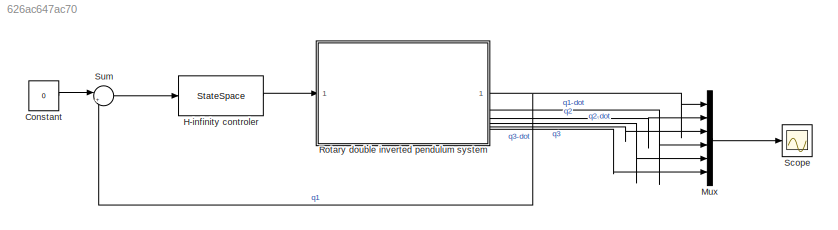
MODEL slx_626ac647ac70
KIND model
CONFIG AbsTol = auto
CONFIG EnableMultiTasking = on
CONFIG FixedStep = 0.002
CONFIG MaxStep = auto
CONFIG MinStep = auto
CONFIG RelTol = 1e-3
CONFIG SampleTimeConstraint = Unconstrained
CONFIG SolverName = VariableStepAuto
CONFIG StartTime = 0.0
CONFIG StopTime = 30
BLOCK [Constant] Constant
  Value = 0
BLOCK [StateSpace] H-infinity controler
  A = A_c
  B = B_c
  C = C_c
  D = D_c
  InitialCondition = 0
  NameLocation = top
BLOCK [Mux] Mux
  DisplayOption = bar
  Inputs = 6
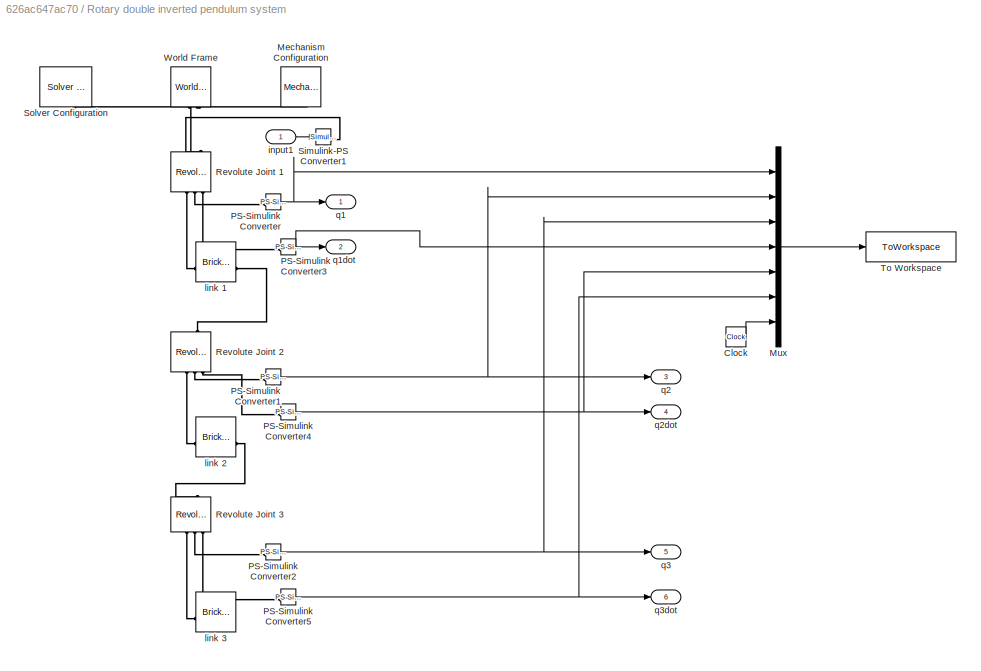
BLOCK [SubSystem] Rotary double inverted pendulum system
BLOCK [Clock] Rotary double inverted pendulum system/Clock
BLOCK [Reference] Rotary double inverted pendulum system/Mechanism Configuration  REF=sm_lib/Utilities/Mechanism
Configuration
  NameLocation = right
  SourceBlock = sm_lib/Utilities/Mechanism\nConfiguration
  SourceType = Mechanism\nConfiguration
BLOCK [Mux] Rotary double inverted pendulum system/Mux
  DisplayOption = bar
  Inputs = 7
BLOCK [Reference] Rotary double inverted pendulum system/PS-Simulink Converter  REF=nesl_utility/PS-Simulink
Converter
  SourceBlock = nesl_utility/PS-Simulink\nConverter
  SourceType = PS-Simulink\nConverter
BLOCK [Reference] Rotary double inverted pendulum system/PS-Simulink Converter1  REF=nesl_utility/PS-Simulink
Converter
  SourceBlock = nesl_utility/PS-Simulink\nConverter
  SourceType = PS-Simulink\nConverter
BLOCK [Reference] Rotary double inverted pendulum system/PS-Simulink Converter2  REF=nesl_utility/PS-Simulink
Converter
  SourceBlock = nesl_utility/PS-Simulink\nConverter
  SourceType = PS-Simulink\nConverter
BLOCK [Reference] Rotary double inverted pendulum system/PS-Simulink Converter3  REF=nesl_utility/PS-Simulink
Converter
  SourceBlock = nesl_utility/PS-Simulink\nConverter
  SourceType = PS-Simulink\nConverter
BLOCK [Reference] Rotary double inverted pendulum system/PS-Simulink Converter4  REF=nesl_utility/PS-Simulink
Converter
  SourceBlock = nesl_utility/PS-Simulink\nConverter
  SourceType = PS-Simulink\nConverter
BLOCK [Reference] Rotary double inverted pendulum system/PS-Simulink Converter5  REF=nesl_utility/PS-Simulink
Converter
  SourceBlock = nesl_utility/PS-Simulink\nConverter
  SourceType = PS-Simulink\nConverter
BLOCK [Reference] Rotary double inverted pendulum system/Revolute Joint 1  REF=sm_lib/Joints/Revolute Joint
  NameLocation = right
  SourceBlock = sm_lib/Joints/Revolute Joint
  SourceType = Revolute Joint
BLOCK [Reference] Rotary double inverted pendulum system/Revolute Joint 2  REF=sm_lib/Joints/Revolute Joint
  NameLocation = right
  SourceBlock = sm_lib/Joints/Revolute Joint
  SourceType = Revolute Joint
BLOCK [Reference] Rotary double inverted pendulum system/Revolute Joint 3  REF=sm_lib/Joints/Revolute Joint
  NameLocation = right
  SourceBlock = sm_lib/Joints/Revolute Joint
  SourceType = Revolute Joint
BLOCK [Reference] Rotary double inverted pendulum system/Simulink-PS Converter1  REF=nesl_utility/Simulink-PS
Converter
  SourceBlock = nesl_utility/Simulink-PS\nConverter
  SourceType = Simulink-PS\nConverter
BLOCK [Reference] Rotary double inverted pendulum system/Solver Configuration  REF=nesl_utility/Solver
Configuration
  NameLocation = right
  SourceBlock = nesl_utility/Solver\nConfiguration
  SourceType = Solver\nConfiguration
BLOCK [ToWorkspace] Rotary double inverted pendulum system/To Workspace
  FixptAsFi = on
  MaxDataPoints = inf
  SampleTime = -1
  VariableName = simout
BLOCK [Reference] Rotary double inverted pendulum system/World Frame  REF=sm_lib/Frames and
Transforms/World Frame
  NameLocation = right
  SourceBlock = sm_lib/Frames and\nTransforms/World Frame
  SourceType = World Frame
BLOCK [Inport] Rotary double inverted pendulum system/input1
BLOCK [Reference] Rotary double inverted pendulum system/link 1  REF=sm_lib/Body Elements/Brick Solid
  NameLocation = top
  SourceBlock = sm_lib/Body Elements/Brick Solid
  SourceType = Brick Solid
BLOCK [Reference] Rotary double inverted pendulum system/link 2  REF=sm_lib/Body Elements/Brick Solid
  NameLocation = top
  SourceBlock = sm_lib/Body Elements/Brick Solid
  SourceType = Brick Solid
BLOCK [Reference] Rotary double inverted pendulum system/link 3  REF=sm_lib/Body Elements/Brick Solid
  NameLocation = top
  SourceBlock = sm_lib/Body Elements/Brick Solid
  SourceType = Brick Solid
BLOCK [Outport] Rotary double inverted pendulum system/q1
BLOCK [Outport] Rotary double inverted pendulum system/q1dot
  Port = 2
BLOCK [Outport] Rotary double inverted pendulum system/q2
  Port = 3
BLOCK [Outport] Rotary double inverted pendulum system/q2dot
  Port = 4
BLOCK [Outport] Rotary double inverted pendulum system/q3
  Port = 5
BLOCK [Outport] Rotary double inverted pendulum system/q3dot
  Port = 6
BLOCK [Scope] Scope
  Floating = off
  NumInputPorts = 1
  ScopeSpecificationString = Simulink.scopes.TimeScopeBlockCfg('CurrentConfiguration', extmgr.ConfigurationSet(extmgr.Configuration('Core','General UI',true),extmgr.Configuration('Core','Source UI',true),extmgr.Configuration('Sources','WiredSimulink',true),extmgr.Configuration('Visuals','Time Domain',true,'SerializedDisplays',{struct('MinYLimReal','-0.13809','MaxYLimReal','0.09051','YLabelReal','','MinYLimMag','0.00000','MaxY...<+1388ch>
BLOCK [Sum] Sum
  Inputs = |+-
LINE Constant:1 -> Sum:1
LINE H-infinity controler:1 -> Rotary double inverted pendulum system:1
LINE Mux:1 -> Scope:1
LINE Rotary double inverted pendulum system/Clock:1 -> Rotary double inverted pendulum system/Mux:7
LINE Rotary double inverted pendulum system/Mux:1 -> Rotary double inverted pendulum system/To Workspace:1
NET Rotary double inverted pendulum system/PS-Simulink Converter1:1 -> Rotary double inverted pendulum system/Mux:2, Rotary double inverted pendulum system/q2:1
NET Rotary double inverted pendulum system/PS-Simulink Converter2:1 -> Rotary double inverted pendulum system/Mux:3, Rotary double inverted pendulum system/q3:1
NET Rotary double inverted pendulum system/PS-Simulink Converter3:1 -> Rotary double inverted pendulum system/Mux:4, Rotary double inverted pendulum system/q1dot:1
NET Rotary double inverted pendulum system/PS-Simulink Converter4:1 -> Rotary double inverted pendulum system/Mux:5, Rotary double inverted pendulum system/q2dot:1
NET Rotary double inverted pendulum system/PS-Simulink Converter5:1 -> Rotary double inverted pendulum system/Mux:6, Rotary double inverted pendulum system/q3dot:1
NET Rotary double inverted pendulum system/PS-Simulink Converter:1 -> Rotary double inverted pendulum system/Mux:1, Rotary double inverted pendulum system/q1:1
LINE Rotary double inverted pendulum system/input1:1 -> Rotary double inverted pendulum system/Simulink-PS Converter1:1
NET Rotary double inverted pendulum system:1 -> Mux:1, Sum:2
LINE Rotary double inverted pendulum system:2 -> Mux:4
LINE Rotary double inverted pendulum system:3 -> Mux:2
LINE Rotary double inverted pendulum system:4 -> Mux:5
LINE Rotary double inverted pendulum system:5 -> Mux:3
LINE Rotary double inverted pendulum system:6 -> Mux:6
LINE Sum:1 -> H-infinity controler:1
PNET net1: Rotary double inverted pendulum system/Mechanism Configuration:RConn1 -- Rotary double inverted pendulum system/Revolute Joint 1:LConn1 -- Rotary double inverted pendulum system/Solver Configuration:RConn1 -- Rotary double inverted pendulum system/World Frame:RConn1
PLINE Rotary double inverted pendulum system/PS-Simulink Converter1:LConn1 -- Rotary double inverted pendulum system/Revolute Joint 2:RConn2
PLINE Rotary double inverted pendulum system/PS-Simulink Converter2:LConn1 -- Rotary double inverted pendulum system/Revolute Joint 3:RConn2
PLINE Rotary double inverted pendulum system/PS-Simulink Converter3:LConn1 -- Rotary double inverted pendulum system/Revolute Joint 1:RConn3
PLINE Rotary double inverted pendulum system/PS-Simulink Converter4:LConn1 -- Rotary double inverted pendulum system/Revolute Joint 2:RConn3
PLINE Rotary double inverted pendulum system/PS-Simulink Converter5:LConn1 -- Rotary double inverted pendulum system/Revolute Joint 3:RConn3
PLINE Rotary double inverted pendulum system/PS-Simulink Converter:LConn1 -- Rotary double inverted pendulum system/Revolute Joint 1:RConn2
PLINE Rotary double inverted pendulum system/Revolute Joint 1:LConn2 -- Rotary double inverted pendulum system/Simulink-PS Converter1:RConn1
PLINE Rotary double inverted pendulum system/Revolute Joint 1:RConn1 -- Rotary double inverted pendulum system/link 1:LConn1
PLINE Rotary double inverted pendulum system/Revolute Joint 2:LConn1 -- Rotary double inverted pendulum system/link 1:RConn1
PLINE Rotary double inverted pendulum system/Revolute Joint 2:RConn1 -- Rotary double inverted pendulum system/link 2:LConn1
PLINE Rotary double inverted pendulum system/Revolute Joint 3:LConn1 -- Rotary double inverted pendulum system/link 2:RConn1
PLINE Rotary double inverted pendulum system/Revolute Joint 3:RConn1 -- Rotary double inverted pendulum system/link 3:LConn1
note: NET lines group one-source signal fan-out (src -> all destinations, sorted); 1:1 wires keep LINE; PNET lines group multi-terminal physical nets as a canonical sorted terminal list (undirected conserving connections); 2-terminal nets keep the pairwise PLINE form
